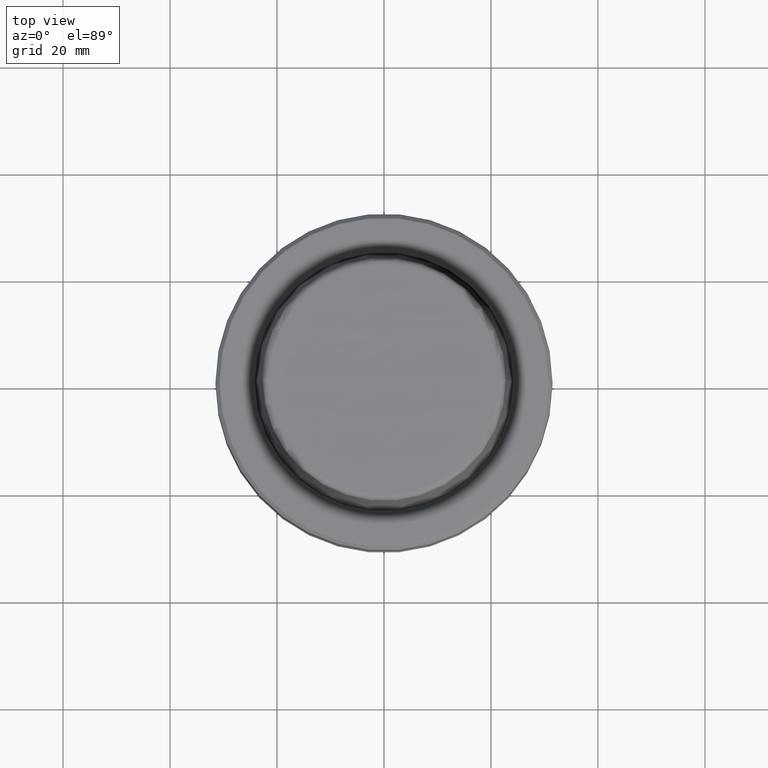
[diagram: clean part render]
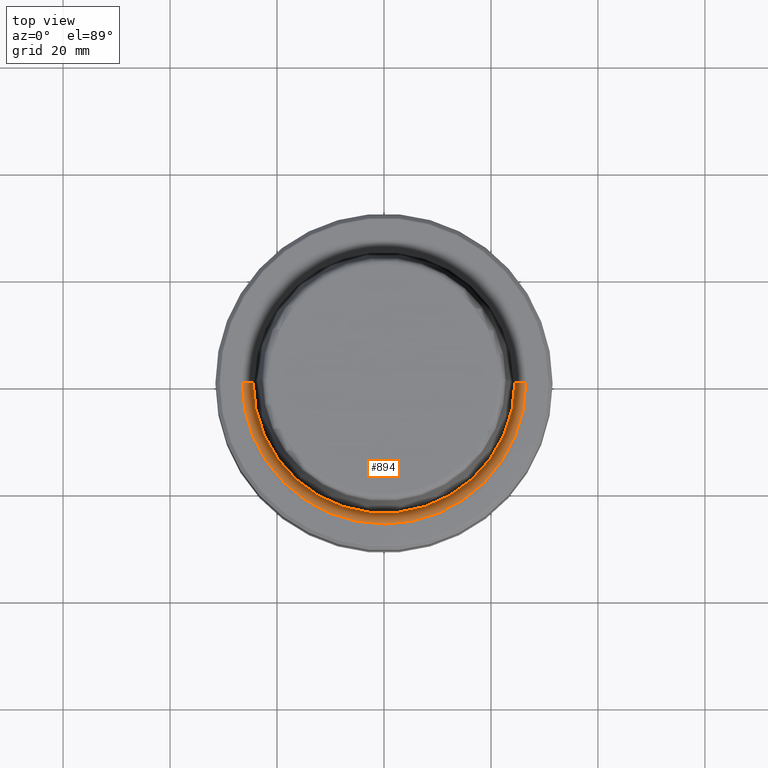
[diagram: same view with one face highlighted and labeled with its STEP entity id]
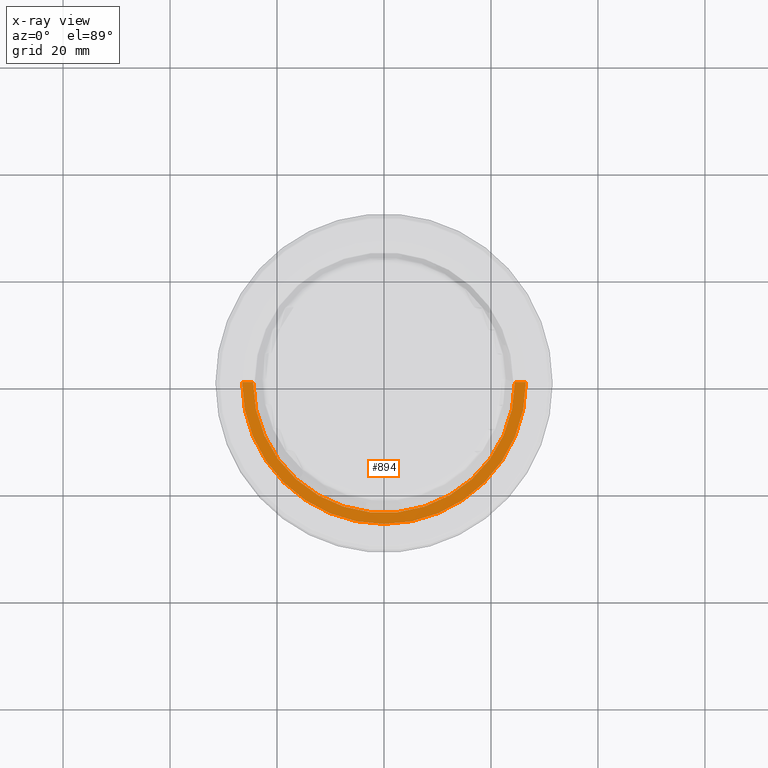
[diagram: x-ray of the same camera — body ghosted, the highlighted face saturated]
A machine part, top view. The second image highlights one B-rep face of the part: STEP entity #894.
The next image is the same camera in x-ray: the body ghosted, the highlighted face saturated — about 0% of this face is hidden behind the body in this view.
In plain terms, the highlighted conical surface has half-angle 80 deg.
Its self-contained STEP definition (entity closure, byte-faithful):
#117 = ORIENTED_EDGE ( 'NONE', *, *, #512, .F. ) ;
#160 = EDGE_CURVE ( 'NONE', #2150, #1239, #2086, .T. ) ;
#188 = CARTESIAN_POINT ( 'NONE',  ( 26.52499999999999900, 0.0000000000000000000, 0.0000000000000000000 ) ) ;
#510 = EDGE_CURVE ( 'NONE', #2150, #2765, #2427, .T. ) ;
#512 = EDGE_CURVE ( 'NONE', #1239, #1196, #1267, .T. ) ;
#516 = DIRECTION ( 'NONE',  ( 1.000000000000000000, 0.0000000000000000000, 0.0000000000000000000 ) ) ;
#641 = AXIS2_PLACEMENT_3D ( 'NONE', #2126, #2462, #1024 ) ;
#734 = CARTESIAN_POINT ( 'NONE',  ( 26.52499999999999900, 0.0000000000000000000, 0.0000000000000000000 ) ) ;
#867 = DIRECTION ( 'NONE',  ( -0.0000000000000000000, -0.0000000000000000000, 1.000000000000000000 ) ) ;
#894 = ADVANCED_FACE ( 'NONE', ( #2420 ), #1188, .F. ) ;
#1021 = EDGE_LOOP ( 'NONE', ( #1035, #1431, #1322, #117 ) ) ;
#1024 = DIRECTION ( 'NONE',  ( 1.000000000000000000, 0.0000000000000000000, 0.0000000000000000000 ) ) ;
#1035 = ORIENTED_EDGE ( 'NONE', *, *, #160, .F. ) ;
#1188 = CONICAL_SURFACE ( 'NONE', #1227, 26.52499999999999900, 1.396263401595460500 ) ;
#1196 = VERTEX_POINT ( 'NONE', #188 ) ;
#1227 = AXIS2_PLACEMENT_3D ( 'NONE', #1386, #1396, #516 ) ;
#1239 = VERTEX_POINT ( 'NONE', #2369 ) ;
#1267 = LINE ( 'NONE', #734, #2365 ) ;
#1322 = ORIENTED_EDGE ( 'NONE', *, *, #1782, .T. ) ;
#1386 = CARTESIAN_POINT ( 'NONE',  ( 0.0000000000000000000, 0.0000000000000000000, 0.0000000000000000000 ) ) ;
#1396 = DIRECTION ( 'NONE',  ( -0.0000000000000000000, -0.0000000000000000000, 1.000000000000000000 ) ) ;
#1431 = ORIENTED_EDGE ( 'NONE', *, *, #510, .T. ) ;
#1610 = DIRECTION ( 'NONE',  ( 0.9848077530122074700, 0.0000000000000000000, 0.1736481776669334700 ) ) ;
#1765 = AXIS2_PLACEMENT_3D ( 'NONE', #2192, #867, #2402 ) ;
#1782 = EDGE_CURVE ( 'NONE', #2765, #1196, #2025, .T. ) ;
#1846 = VECTOR ( 'NONE', #2756, 1000.000000000000200 ) ;
#1877 = CARTESIAN_POINT ( 'NONE',  ( -24.47682408883346700, 3.122961031053313900E-015, -0.3611486743758107700 ) ) ;
#2025 = CIRCLE ( 'NONE', #1765, 26.52499999999999900 ) ;
#2054 = CARTESIAN_POINT ( 'NONE',  ( -26.52499999999999900, 3.248375634738354300E-015, 0.0000000000000000000 ) ) ;
#2086 = CIRCLE ( 'NONE', #641, 24.47682408883346700 ) ;
#2126 = CARTESIAN_POINT ( 'NONE',  ( 0.0000000000000000000, 0.0000000000000000000, -0.3611486743758107700 ) ) ;
#2150 = VERTEX_POINT ( 'NONE', #1877 ) ;
#2192 = CARTESIAN_POINT ( 'NONE',  ( 0.0000000000000000000, 0.0000000000000000000, 0.0000000000000000000 ) ) ;
#2365 = VECTOR ( 'NONE', #1610, 1000.000000000000200 ) ;
#2369 = CARTESIAN_POINT ( 'NONE',  ( 24.47682408883346700, 0.0000000000000000000, -0.3611486743758107700 ) ) ;
#2402 = DIRECTION ( 'NONE',  ( 1.000000000000000000, 0.0000000000000000000, 0.0000000000000000000 ) ) ;
#2420 = FACE_OUTER_BOUND ( 'NONE', #1021, .T. ) ;
#2427 = LINE ( 'NONE', #2054, #1846 ) ;
#2462 = DIRECTION ( 'NONE',  ( -0.0000000000000000000, -0.0000000000000000000, 1.000000000000000000 ) ) ;
#2515 = CARTESIAN_POINT ( 'NONE',  ( -26.52499999999999900, 3.248375634738354300E-015, 0.0000000000000000000 ) ) ;
#2756 = DIRECTION ( 'NONE',  ( -0.9848077530122074700, 1.206041662501897100E-016, 0.1736481776669334700 ) ) ;
#2765 = VERTEX_POINT ( 'NONE', #2515 ) ;